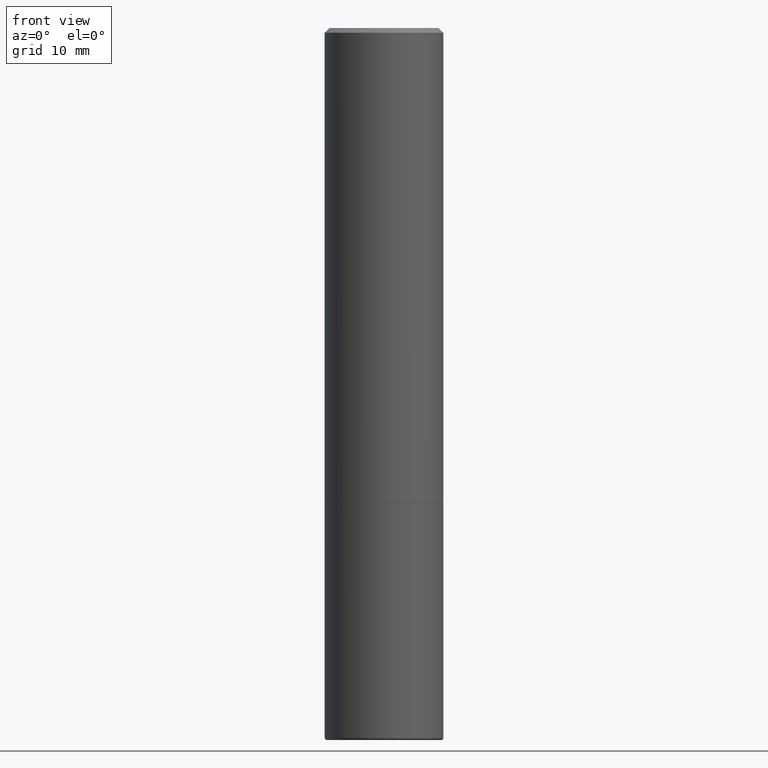
[diagram: clean part render]
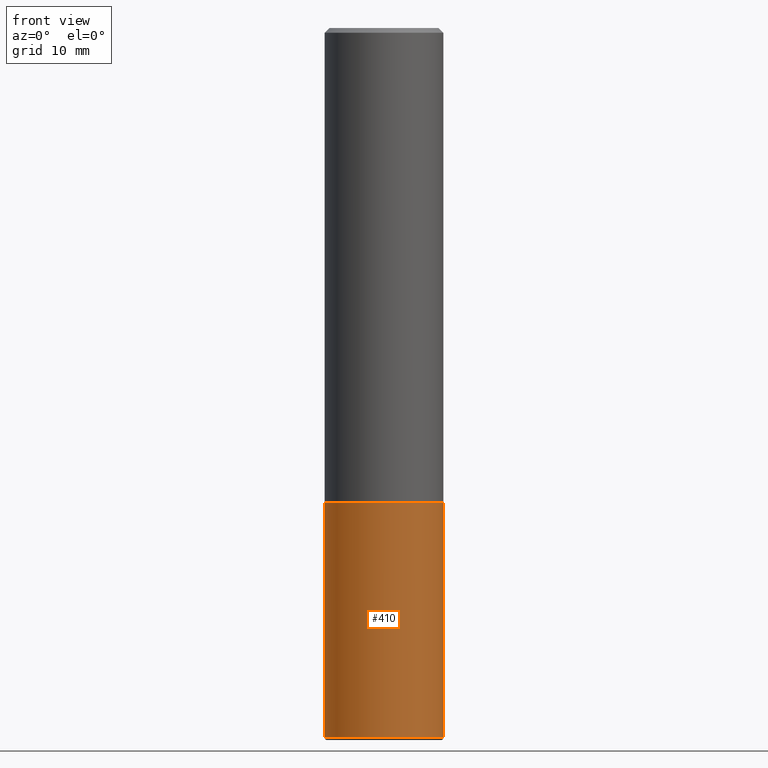
[diagram: same view with one face highlighted and labeled with its STEP entity id]
A machine part, front view. The second image highlights one B-rep face of the part: STEP entity #410.
In plain terms, the highlighted cylindrical surface (partial cylindrical patch) has radius 6.35 mm, axis along (-0, 0, 1).
Its self-contained STEP definition (entity closure, byte-faithful):
#32 = VERTEX_POINT ( 'NONE', #393 ) ;
#54 = VECTOR ( 'NONE', #288, 39.37007874015748143 ) ;
#55 = DIRECTION ( 'NONE',  ( -2.445468806185136597E-29, 3.491481338843145583E-15, 1.000000000000000000 ) ) ;
#81 = CARTESIAN_POINT ( 'NONE',  ( 7.311951730493558245E-29, -1.043952920314100628E-14, -2.990000000000000213 ) ) ;
#105 = FACE_OUTER_BOUND ( 'NONE', #395, .T. ) ;
#119 = DIRECTION ( 'NONE',  ( 1.000000000000000000, -6.982962677686262766E-15, 0.000000000000000000 ) ) ;
#145 = AXIS2_PLACEMENT_3D ( 'NONE', #325, #238, #226 ) ;
#160 = CARTESIAN_POINT ( 'NONE',  ( -0.2500000000000000000, 1.776356839400250465E-15, -1.229733772563726445E-29 ) ) ;
#162 = VERTEX_POINT ( 'NONE', #207 ) ;
#186 = DIRECTION ( 'NONE',  ( -2.445468806185136877E-29, 3.491481338843145188E-15, 1.000000000000000000 ) ) ;
#187 = AXIS2_PLACEMENT_3D ( 'NONE', #413, #55, #415 ) ;
#192 = CYLINDRICAL_SURFACE ( 'NONE', #145, 0.2500000000000000000 ) ;
#194 = EDGE_CURVE ( 'NONE', #299, #162, #368, .T. ) ;
#196 = VECTOR ( 'NONE', #186, 39.37007874015748143 ) ;
#207 = CARTESIAN_POINT ( 'NONE',  ( 0.2499999999999998890, -1.218526987256257138E-14, -2.990000000000000213 ) ) ;
#218 = CARTESIAN_POINT ( 'NONE',  ( -0.2499999999999998890, -8.663172363740755817E-15, -2.990000000000000213 ) ) ;
#224 = CARTESIAN_POINT ( 'NONE',  ( -0.2500000000000000000, -6.934889101013398653E-15, -2.000000000000000444 ) ) ;
#226 = DIRECTION ( 'NONE',  ( 1.000000000000000000, -6.982962677686266711E-15, 4.876176775795935793E-29 ) ) ;
#238 = DIRECTION ( 'NONE',  ( -2.445468806185136597E-29, 3.491481338843145583E-15, 1.000000000000000000 ) ) ;
#245 = EDGE_CURVE ( 'NONE', #357, #32, #268, .T. ) ;
#262 = CARTESIAN_POINT ( 'NONE',  ( 0.2500000000000000000, -1.745740669421566678E-15, 1.219044193948983948E-29 ) ) ;
#263 = ORIENTED_EDGE ( 'NONE', *, *, #245, .F. ) ;
#268 = CIRCLE ( 'NONE', #187, 0.2500000000000000000 ) ;
#282 = AXIS2_PLACEMENT_3D ( 'NONE', #81, #411, #119 ) ;
#288 = DIRECTION ( 'NONE',  ( -2.445468806185136877E-29, 3.491481338843145188E-15, 1.000000000000000000 ) ) ;
#299 = VERTEX_POINT ( 'NONE', #218 ) ;
#325 = CARTESIAN_POINT ( 'NONE',  ( 0.000000000000000000, 0.000000000000000000, 0.000000000000000000 ) ) ;
#339 = EDGE_CURVE ( 'NONE', #162, #32, #350, .T. ) ;
#341 = ORIENTED_EDGE ( 'NONE', *, *, #339, .T. ) ;
#343 = ORIENTED_EDGE ( 'NONE', *, *, #194, .T. ) ;
#350 = LINE ( 'NONE', #262, #196 ) ;
#357 = VERTEX_POINT ( 'NONE', #224 ) ;
#368 = CIRCLE ( 'NONE', #282, 0.2500000000000000000 ) ;
#372 = EDGE_CURVE ( 'NONE', #299, #357, #414, .T. ) ;
#393 = CARTESIAN_POINT ( 'NONE',  ( 0.2500000000000000000, -8.728703347107858632E-15, -2.000000000000000444 ) ) ;
#395 = EDGE_LOOP ( 'NONE', ( #418, #343, #341, #263 ) ) ;
#410 = ADVANCED_FACE ( 'NONE', ( #105 ), #192, .T. ) ;
#411 = DIRECTION ( 'NONE',  ( -2.445468806185136597E-29, 3.491481338843145583E-15, 1.000000000000000000 ) ) ;
#413 = CARTESIAN_POINT ( 'NONE',  ( 4.890937612370273754E-29, -6.982962677686291954E-15, -2.000000000000000444 ) ) ;
#414 = LINE ( 'NONE', #160, #54 ) ;
#415 = DIRECTION ( 'NONE',  ( 1.000000000000000000, -6.982962677686266711E-15, 0.000000000000000000 ) ) ;
#418 = ORIENTED_EDGE ( 'NONE', *, *, #372, .F. ) ;